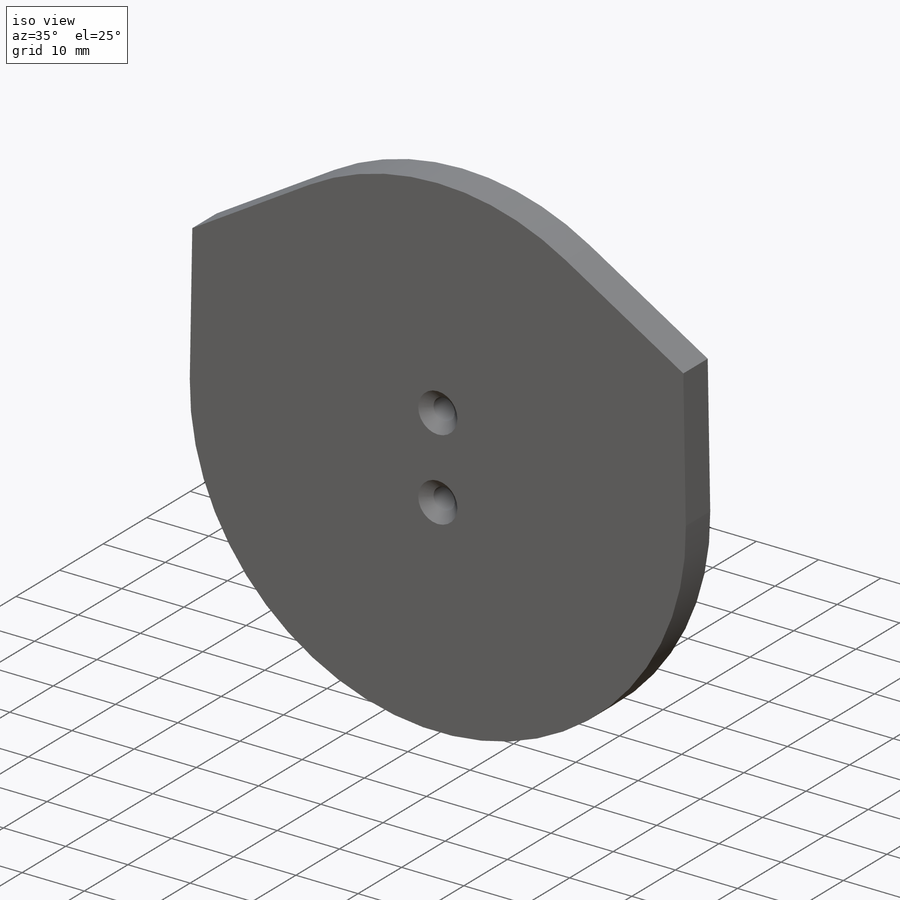
[diagram: iso view]
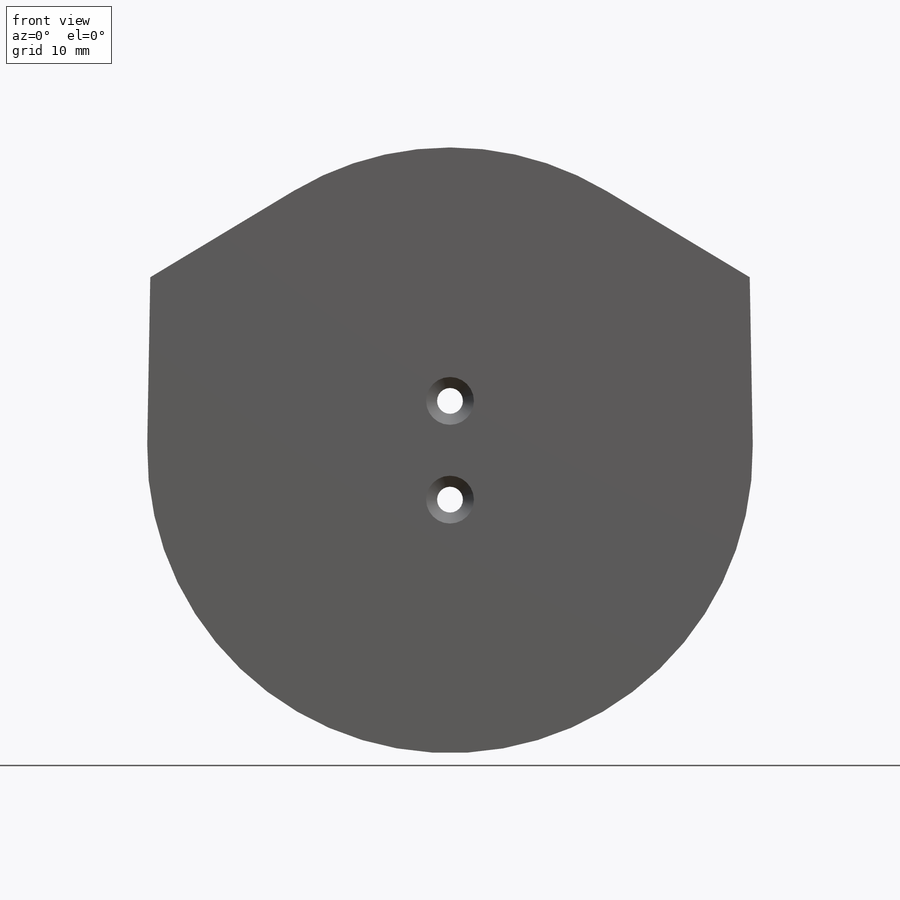
[diagram: front view]
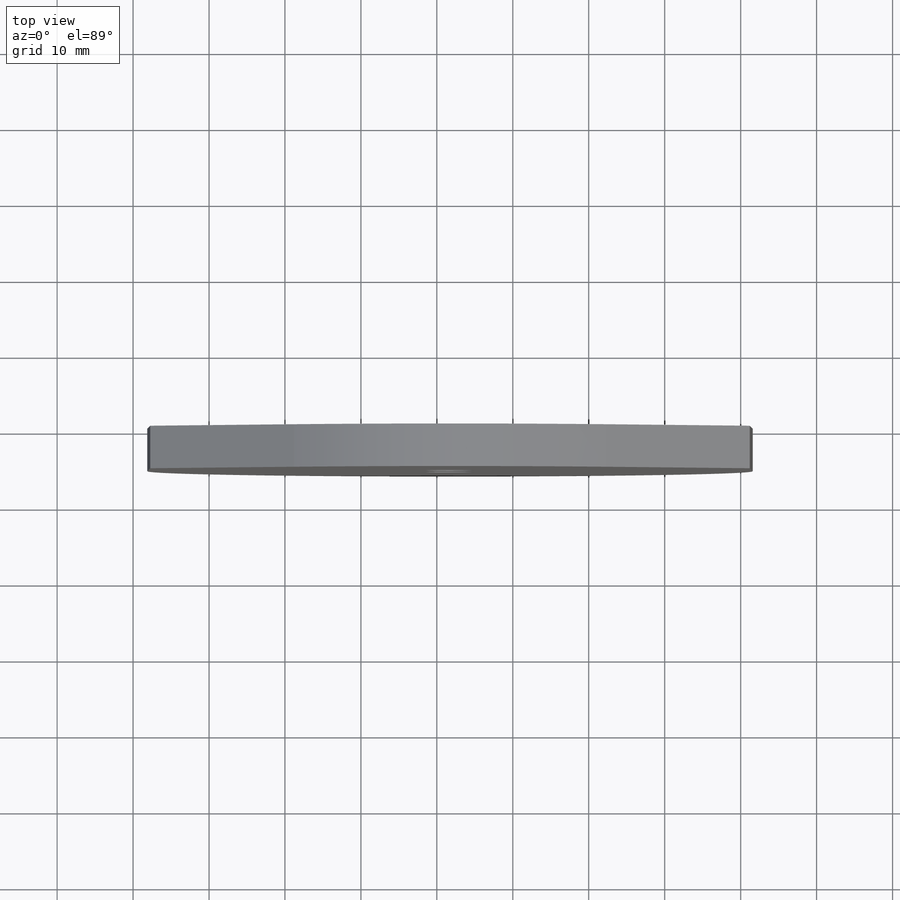
[diagram: top view]
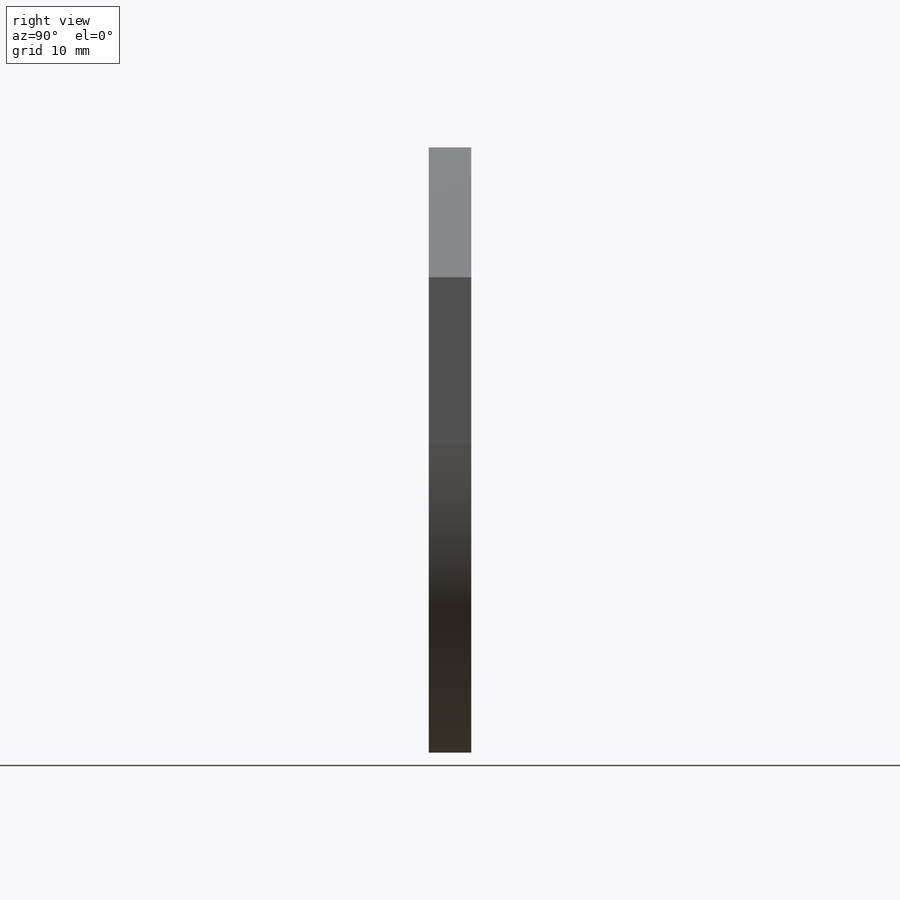
[diagram: right view]
SOLIDWORKS PART (.sldprt)
format: sldprt  version: not decoded by parser v0  size: 267,776 bytes
history: native  units: mm
features: sketch x4, material x1, extrude x1, hole x1 (+13 scaffold rows collapsed)
feature tree (20):
  scaffold x13  (default folders/planes/origin — collapsed)
  material  "Material <not specified>"
  sketch  "Sketch6"  dims[c1.D1=95.0mm c1.D2=~80.415174mm c1.D3=~87.503574mm c2.D1=~16.043128mm c2.D2=~148.816294mm c3.D1=87.5mm c3.D2=8.0mm c3.D3=4.0mm c4.D1=5.0mm c4.D2=5.0mm c4.D3=5.0mm c4.D4=5.0mm c4.D5=5.0mm c5.D1=7.0mm c5.D2=3.5mm c5.D3=3.5mm c5.D4=4.0mm c5.D5=4.0mm c5.D6=4.0mm c5.D7=4.0mm c6.D3=4.0mm c6.D4=4.0mm c6.D5=4.0mm c6.D6=4.0mm c6.D2=4.0mm c7.D3=4.0mm c7.D4=4.0mm c7.D5=4.0mm c7.D1=20.0mm]
  extrude  "Boss-Extrude4"  Depth=4.5mm
  sketch  "Sketch8"  dims[D1=13.0mm]
  hole  "CSK for M3 Flat Head Machine Screw1"  Diameter=3.4mm Depth=4.5mm
  sketch  "Sketch14"
  sketch  "Sketch13"  dims[hole-wizard template sketch: 55 standard entries collapsed; hole parameters kept: c17.Thru Hole Depth=4.5mm c17.Near C'Sink Dia.=6.3mm c17.D4=~3.666174mm c17.Near C'Sink Angle=90.0deg]
decode coverage: 5 of 6 modeling features carry decoded parameters
note: ~ marks probable driven/reference dimensions
note: suppression state not decoded; provenance and decode notes live in map.json
